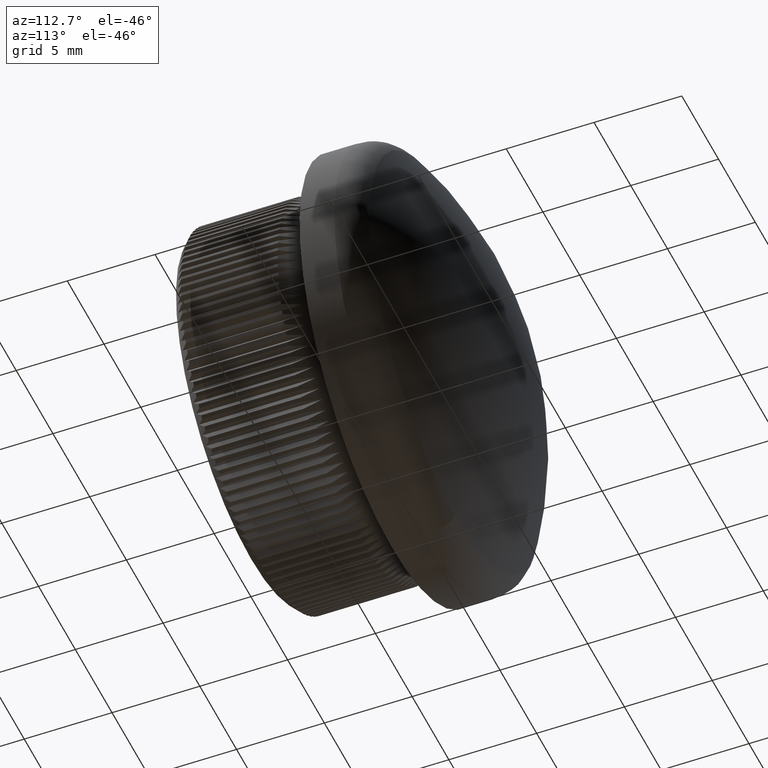
[diagram: clean part render]
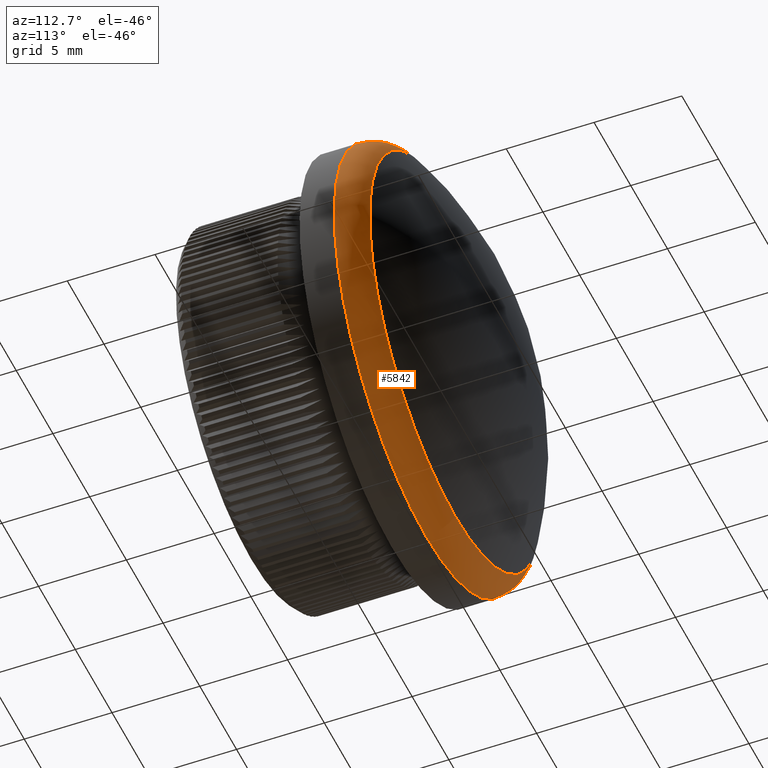
[diagram: same view with one face highlighted and labeled with its STEP entity id]
A machine part, auxiliary view. The second image highlights one B-rep face of the part: STEP entity #5842.
In plain terms, the highlighted toroidal blend (fillet) surface has major radius 10.5 mm and minor (blend) radius 2 mm.
Its self-contained STEP definition (entity closure, byte-faithful):
#580 = DIRECTION ( 'NONE',  ( -0.000000000000000000, -1.000000000000000000, -0.000000000000000000 ) ) ;
#3134 = CARTESIAN_POINT ( 'NONE',  ( 0.000000000000000000, 9.974097089045827147, -12.50000000000000178 ) ) ;
#3897 = FACE_OUTER_BOUND ( 'NONE', #11000, .T. ) ;
#4163 = CARTESIAN_POINT ( 'NONE',  ( 0.000000000000000000, 9.974097089045827147, 0.000000000000000000 ) ) ;
#4481 = CARTESIAN_POINT ( 'NONE',  ( 0.000000000000000000, 9.974097089045827147, 0.000000000000000000 ) ) ;
#5059 = FACE_OUTER_BOUND ( 'NONE', #5063, .T. ) ;
#5063 = EDGE_LOOP ( 'NONE', ( #11511 ) ) ;
#5251 = CIRCLE ( 'NONE', #10134, 12.50000000000000178 ) ;
#5410 = ORIENTED_EDGE ( 'NONE', *, *, #14753, .F. ) ;
#5842 = ADVANCED_FACE ( 'NONE', ( #3897, #5059 ), #14171, .T. ) ;
#7598 = DIRECTION ( 'NONE',  ( 0.000000000000000000, 0.000000000000000000, -1.000000000000000000 ) ) ;
#7870 = AXIS2_PLACEMENT_3D ( 'NONE', #10414, #8726, #12402 ) ;
#8726 = DIRECTION ( 'NONE',  ( 0.000000000000000000, 1.000000000000000000, 0.000000000000000000 ) ) ;
#9973 = DIRECTION ( 'NONE',  ( 0.000000000000000000, 0.000000000000000000, -1.000000000000000000 ) ) ;
#10134 = AXIS2_PLACEMENT_3D ( 'NONE', #4163, #580, #7598 ) ;
#10414 = CARTESIAN_POINT ( 'NONE',  ( 0.000000000000000000, 11.62910269790680040, 0.000000000000000000 ) ) ;
#11000 = EDGE_LOOP ( 'NONE', ( #5410 ) ) ;
#11511 = ORIENTED_EDGE ( 'NONE', *, *, #13535, .F. ) ;
#12402 = DIRECTION ( 'NONE',  ( 0.000000000000000000, 0.000000000000000000, -1.000000000000000000 ) ) ;
#13535 = EDGE_CURVE ( 'NONE', #23002, #23002, #5251, .T. ) ;
#13769 = CIRCLE ( 'NONE', #7870, 11.62292316506461454 ) ;
#13938 = AXIS2_PLACEMENT_3D ( 'NONE', #4481, #22363, #9973 ) ;
#14171 = TOROIDAL_SURFACE ( 'NONE', #13938, 10.50000000000000178, 2.000000000000000000 ) ;
#14753 = EDGE_CURVE ( 'NONE', #16750, #16750, #13769, .T. ) ;
#15945 = CARTESIAN_POINT ( 'NONE',  ( 0.000000000000000000, 11.62910269790680040, -11.62292316506461454 ) ) ;
#16750 = VERTEX_POINT ( 'NONE', #15945 ) ;
#22363 = DIRECTION ( 'NONE',  ( -0.000000000000000000, -1.000000000000000000, -0.000000000000000000 ) ) ;
#23002 = VERTEX_POINT ( 'NONE', #3134 ) ;